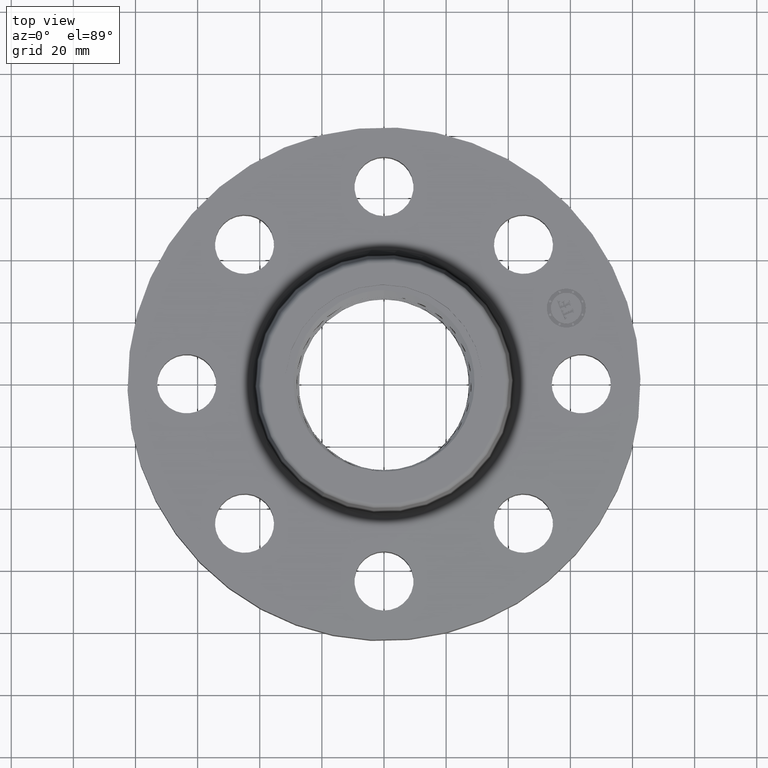
[diagram: clean part render]
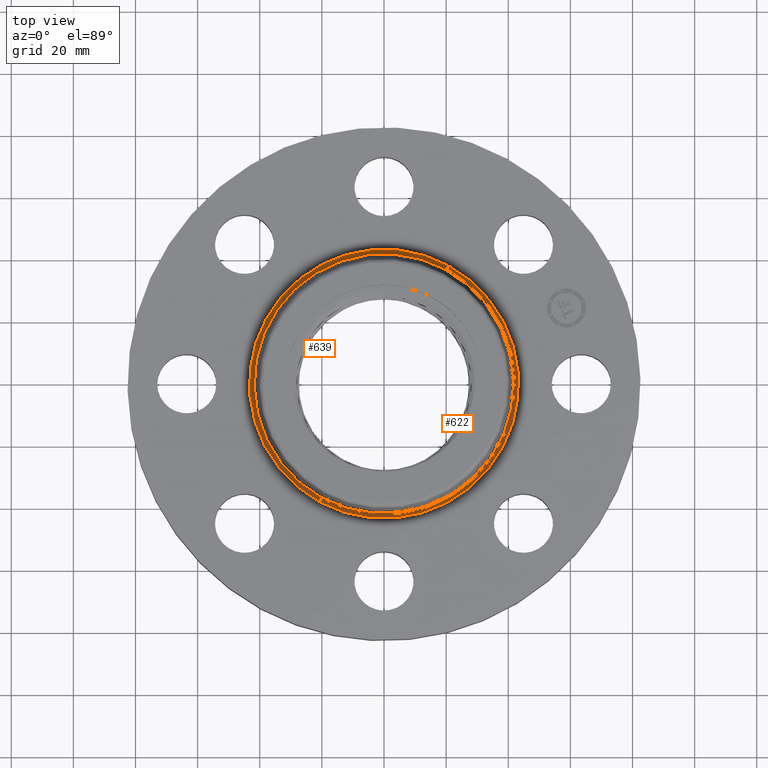
[diagram: same view with one multi-face feature highlighted, each face labeled with its STEP entity id]
A machine part, top view. The highlighted faces form ONE feature: a constant-radius fillet chain: 2 tangent blend faces with common blend radius 1.524 mm. The faces share edges in the B-rep.
Their STEP definitions:
[1] entity #622 (Torus):
#586=AXIS2_PLACEMENT_3D('Torus Axis2P3D',#583,#584,#585) ;
#590=AXIS2_PLACEMENT_3D('Circle Axis2P3D',#588,#589,$) ;
#599=AXIS2_PLACEMENT_3D('Circle Axis2P3D',#597,#598,$) ;
#606=AXIS2_PLACEMENT_3D('Circle Axis2P3D',#604,#605,$) ;
#613=AXIS2_PLACEMENT_3D('Circle Axis2P3D',#611,#612,$) ;
#583=CARTESIAN_POINT('Axis2P3D Location',(0.,0.,0.870000000003)) ;
#588=CARTESIAN_POINT('Axis2P3D Location',(0.,0.,0.810000000003)) ;
#592=CARTESIAN_POINT('Vertex',(0.81758641395,1.49658189218,0.810000000003)) ;
#594=CARTESIAN_POINT('Vertex',(-0.81758641395,-1.49658189218,0.810000000003)) ;
#597=CARTESIAN_POINT('Axis2P3D Location',(0.81758641395,1.49658189218,0.870000000003)) ;
#601=CARTESIAN_POINT('Vertex',(0.789257894706,1.44472688552,0.859581109343)) ;
#604=CARTESIAN_POINT('Axis2P3D Location',(0.,0.,0.859581109343)) ;
#608=CARTESIAN_POINT('Vertex',(-0.789257894706,-1.44472688552,0.859581109343)) ;
#611=CARTESIAN_POINT('Axis2P3D Location',(-0.81758641395,-1.49658189218,0.870000000003)) ;
#584=DIRECTION('Axis2P3D Direction',(0.,0.,-0.0393700787402)) ;
#585=DIRECTION('Axis2P3D XDirection',(-0.0188750212049,-0.0345504945626,0.)) ;
#589=DIRECTION('Axis2P3D Direction',(0.,0.,-0.0393700787402)) ;
#598=DIRECTION('Axis2P3D Direction',(-0.0345504945626,0.0188750212049,0.)) ;
#605=DIRECTION('Axis2P3D Direction',(0.,0.,-0.0393700787402)) ;
#612=DIRECTION('Axis2P3D Direction',(0.0345504945626,-0.0188750212049,0.)) ;
#617=ORIENTED_EDGE('',*,*,#596,.F.) ;
#618=ORIENTED_EDGE('',*,*,#603,.T.) ;
#619=ORIENTED_EDGE('',*,*,#610,.T.) ;
#620=ORIENTED_EDGE('',*,*,#615,.F.) ;
#622=ADVANCED_FACE('PartBody',(#621),#587,.F.) ;
#591=CIRCLE('generated circle',#590,1.70534597788) ;
#600=CIRCLE('generated circle',#599,0.0600000000002) ;
#607=CIRCLE('generated circle',#606,1.6462575127) ;
#614=CIRCLE('generated circle',#613,0.0600000000002) ;
#587=TOROIDAL_SURFACE('homeo Torus',#586,1.70534597788,0.0600000000002) ;
#596=EDGE_CURVE('',#593,#595,#591,.T.) ;
#603=EDGE_CURVE('',#593,#602,#600,.T.) ;
#610=EDGE_CURVE('',#602,#609,#607,.T.) ;
#615=EDGE_CURVE('',#595,#609,#614,.T.) ;
#616=EDGE_LOOP('',(#617,#618,#619,#620)) ;
#621=FACE_OUTER_BOUND('',#616,.T.) ;
#593=VERTEX_POINT('',#592) ;
#595=VERTEX_POINT('',#594) ;
#602=VERTEX_POINT('',#601) ;
#609=VERTEX_POINT('',#608) ;
[2] entity #639 (Torus):
#586=AXIS2_PLACEMENT_3D('Torus Axis2P3D',#583,#584,#585) ;
#599=AXIS2_PLACEMENT_3D('Circle Axis2P3D',#597,#598,$) ;
#613=AXIS2_PLACEMENT_3D('Circle Axis2P3D',#611,#612,$) ;
#625=AXIS2_PLACEMENT_3D('Circle Axis2P3D',#623,#624,$) ;
#630=AXIS2_PLACEMENT_3D('Circle Axis2P3D',#628,#629,$) ;
#583=CARTESIAN_POINT('Axis2P3D Location',(0.,0.,0.870000000003)) ;
#592=CARTESIAN_POINT('Vertex',(0.81758641395,1.49658189218,0.810000000003)) ;
#594=CARTESIAN_POINT('Vertex',(-0.81758641395,-1.49658189218,0.810000000003)) ;
#597=CARTESIAN_POINT('Axis2P3D Location',(0.81758641395,1.49658189218,0.870000000003)) ;
#601=CARTESIAN_POINT('Vertex',(0.789257894706,1.44472688552,0.859581109343)) ;
#608=CARTESIAN_POINT('Vertex',(-0.789257894706,-1.44472688552,0.859581109343)) ;
#611=CARTESIAN_POINT('Axis2P3D Location',(-0.81758641395,-1.49658189218,0.870000000003)) ;
#623=CARTESIAN_POINT('Axis2P3D Location',(0.,0.,0.810000000003)) ;
#628=CARTESIAN_POINT('Axis2P3D Location',(0.,0.,0.859581109343)) ;
#584=DIRECTION('Axis2P3D Direction',(0.,0.,-0.0393700787402)) ;
#585=DIRECTION('Axis2P3D XDirection',(-0.0188750212049,-0.0345504945626,0.)) ;
#598=DIRECTION('Axis2P3D Direction',(-0.0345504945626,0.0188750212049,0.)) ;
#612=DIRECTION('Axis2P3D Direction',(0.0345504945626,-0.0188750212049,0.)) ;
#624=DIRECTION('Axis2P3D Direction',(0.,0.,-0.0393700787402)) ;
#629=DIRECTION('Axis2P3D Direction',(0.,0.,-0.0393700787402)) ;
#634=ORIENTED_EDGE('',*,*,#627,.F.) ;
#635=ORIENTED_EDGE('',*,*,#615,.T.) ;
#636=ORIENTED_EDGE('',*,*,#632,.T.) ;
#637=ORIENTED_EDGE('',*,*,#603,.F.) ;
#639=ADVANCED_FACE('PartBody',(#638),#587,.F.) ;
#600=CIRCLE('generated circle',#599,0.0600000000002) ;
#614=CIRCLE('generated circle',#613,0.0600000000002) ;
#626=CIRCLE('generated circle',#625,1.70534597788) ;
#631=CIRCLE('generated circle',#630,1.6462575127) ;
#587=TOROIDAL_SURFACE('homeo Torus',#586,1.70534597788,0.0600000000002) ;
#603=EDGE_CURVE('',#593,#602,#600,.T.) ;
#615=EDGE_CURVE('',#595,#609,#614,.T.) ;
#627=EDGE_CURVE('',#595,#593,#626,.T.) ;
#632=EDGE_CURVE('',#609,#602,#631,.T.) ;
#633=EDGE_LOOP('',(#634,#635,#636,#637)) ;
#638=FACE_OUTER_BOUND('',#633,.T.) ;
#593=VERTEX_POINT('',#592) ;
#595=VERTEX_POINT('',#594) ;
#602=VERTEX_POINT('',#601) ;
#609=VERTEX_POINT('',#608) ;